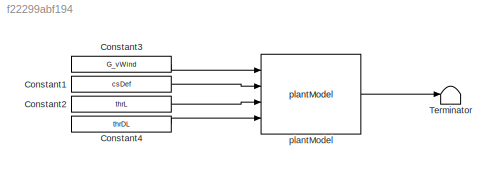
MODEL slx_f22299abf194
KIND model
CONFIG AbsTol = auto
CONFIG EnableMultiTasking = off
CONFIG FixedStep = auto
CONFIG MaxStep = auto
CONFIG MinStep = auto
CONFIG RelTol = 1e-3
CONFIG SampleTimeConstraint = Unconstrained
CONFIG Solver = VariableStepAuto
CONFIG SolverName = VariableStepAuto
CONFIG StartTime = 0.0
CONFIG StopTime = 0.5
BLOCK [Constant] Constant1
  Value = csDef
BLOCK [Constant] Constant2
  Value = thrL
BLOCK [Constant] Constant3
  Value = G_vWind
BLOCK [Constant] Constant4
  Value = thrDL
BLOCK [Terminator] Terminator
BLOCK [Reference] plantModel  REF=plantModel_cl/plantModel
  Ports = [4, 1]
  SourceBlock = plantModel_cl/plantModel
LINE Constant1:1 -> plantModel:2
LINE Constant2:1 -> plantModel:3
LINE Constant3:1 -> plantModel:1
LINE Constant4:1 -> plantModel:4
LINE plantModel:1 -> Terminator:1
